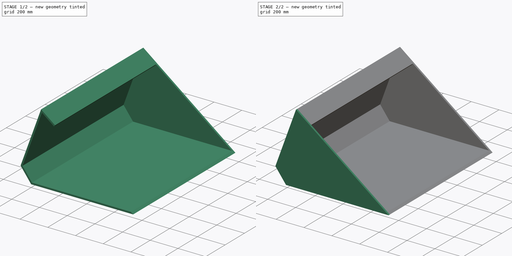
[diagram: build sequence overview — one tinted view per stage of 2, left to right]
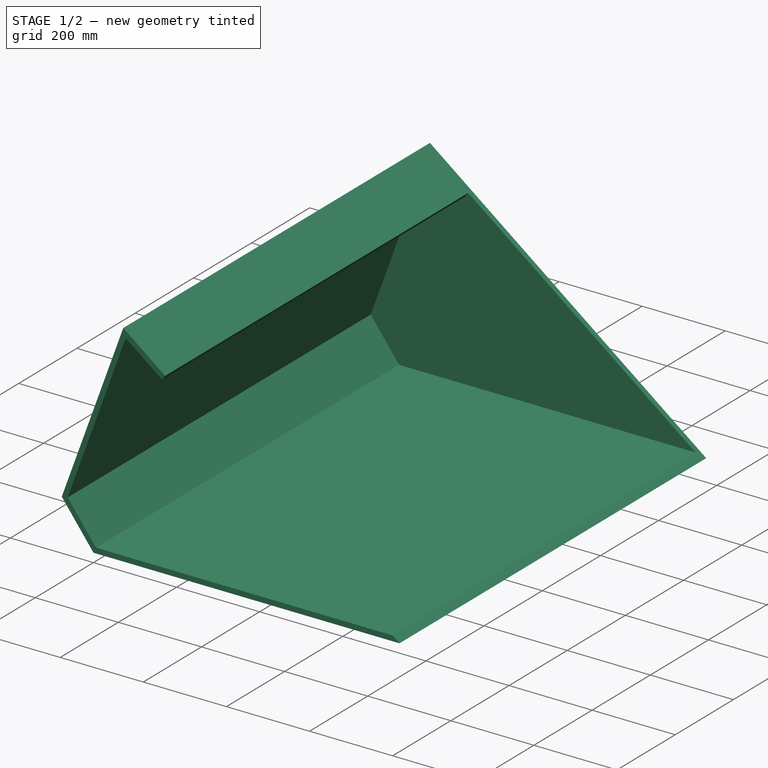
[diagram: stage 1 of 2 — iso view after this stage's code; geometry added in this stage tinted green]
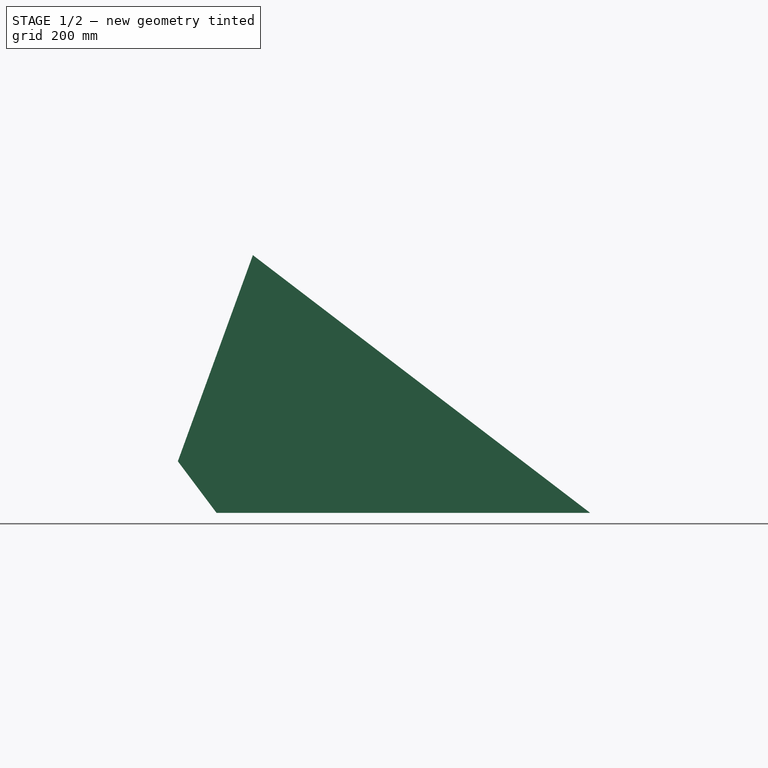
[diagram: stage 1 of 2 — front view after this stage's code; geometry added in this stage tinted green]
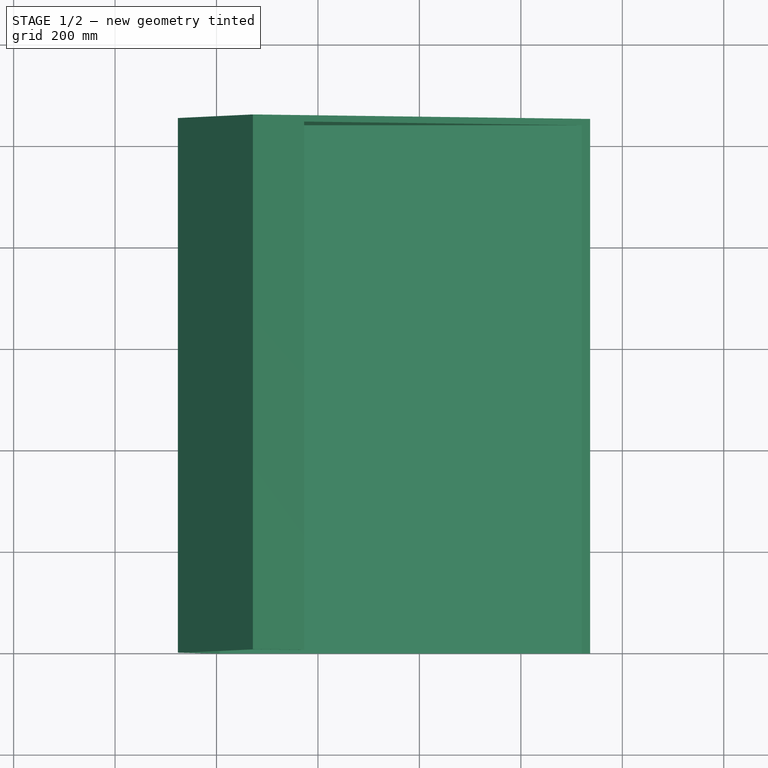
[diagram: stage 1 of 2 — top view after this stage's code; geometry added in this stage tinted green]
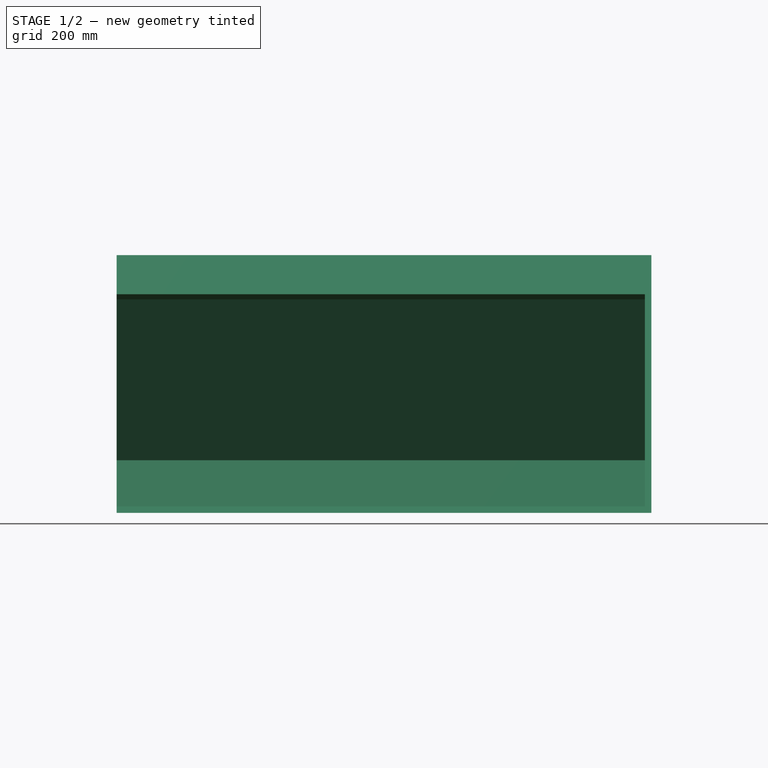
[diagram: stage 1 of 2 — right view after this stage's code; geometry added in this stage tinted green]
FCSTD DOCUMENT  (FreeCAD 0.16R6712 (Git))
Label: MT_ Bucket
License: All rights reserved
LicenseURL: http://en.wikipedia.org/wiki/All_rights_reserved
objects: PartDesign::Pad×3, Sketcher::SketchObject×2, Part::Compound×1
note: 9 computed .brp shape members not serialized (recipe doc carries the construction recipe); baked Part::Feature solids carry a one-line shape summary decoded from their .brp

FEATURE [PartDesign::Pad] Pad001
  Length = 12.7
  Length2 = 100
  Placement = pos=(0,1054.1,0) rot=(1,0,0;1.5708rad)
  Sketch = -> Sketch
  Type = 0
FEATURE [Sketcher::SketchObject] Sketch001
  ExternalGeometry = -> [Pad001]
  Placement = pos=(0,1041.4,0) rot=(1,0,0;1.5708rad)
  Support = -> Pad001 [Face6]
  sketch-geometry (10):
    g0: LineSegment StartX=71.7175 StartY=508 StartZ=0 EndX=-76.2 EndY=101.6 EndZ=0
    g1: LineSegment StartX=-76.2 StartY=101.6 StartZ=0 EndX=0 EndY=0 EndZ=0
    g2: LineSegment StartX=0 StartY=0 StartZ=0 EndX=736.6 EndY=0 EndZ=0
    g3: LineSegment StartX=736.6 StartY=0 StartZ=0 EndX=719.978 EndY=12.7 EndZ=0
    g4: LineSegment StartX=719.978 StartY=12.7 StartZ=0 EndX=6.35 EndY=12.7 EndZ=0
    g5: LineSegment StartX=6.35 StartY=12.7 StartZ=0 EndX=-61.9139 EndY=103.718 EndZ=0
    g6: LineSegment StartX=71.7175 StartY=508 StartZ=0 EndX=172.633 EndY=430.896 EndZ=0
    g7: LineSegment StartX=172.633 StartY=430.896 StartZ=0 EndX=164.923 EndY=420.804 EndZ=0
    g8: LineSegment StartX=164.923 StartY=420.804 StartZ=0 EndX=77.7404 EndY=487.416 EndZ=0
    g9: LineSegment StartX=77.7404 StartY=487.416 StartZ=0 EndX=-61.9139 EndY=103.718 EndZ=0
  constraints (26):
    c: Coincident(g0,g-4)
    c: Coincident(g0,g1)
    c: Coincident(g1,g2)
    c: Coincident(g2,g3)
    c: Coincident(g3,g4)
    c: Horizontal(g4)
    c: Coincident(g4,g5)
    c: Coincident(g0,g-3)
    c: Coincident(g0,g6)
    c: Coincident(g6,g7)
    c: Coincident(g7,g8)
    c: Coincident(g8,g9)
    c: Coincident(g9,g5)
    c: Distance(g6) = 127
    c: PointOnObject(g6,g-6)
    c: Parallel(g8,g-6)
    c: Perpendicular(g-6,g7)
    c: Distance(g8,g-3) = 12.7
    c: Distance(g8,g-6) = 12.7
    c: Parallel(g9,g-3)
    c: Parallel(g5,g-4)
    c: PointOnObject(g3,g-6)
    c: Distance(g3,g-5) = 12.7
    c: Distance(g4,g-4) = 12.7
    c: Coincident(g1,g-5)
    c: Coincident(g2,g-6)
FEATURE [PartDesign::Pad] Pad002
  Length = 1041.4
  Length2 = 100
  Placement = pos=(0,1054.1,0) rot=(1,0,0;1.5708rad)
  Sketch = -> Sketch001
  Type = 0
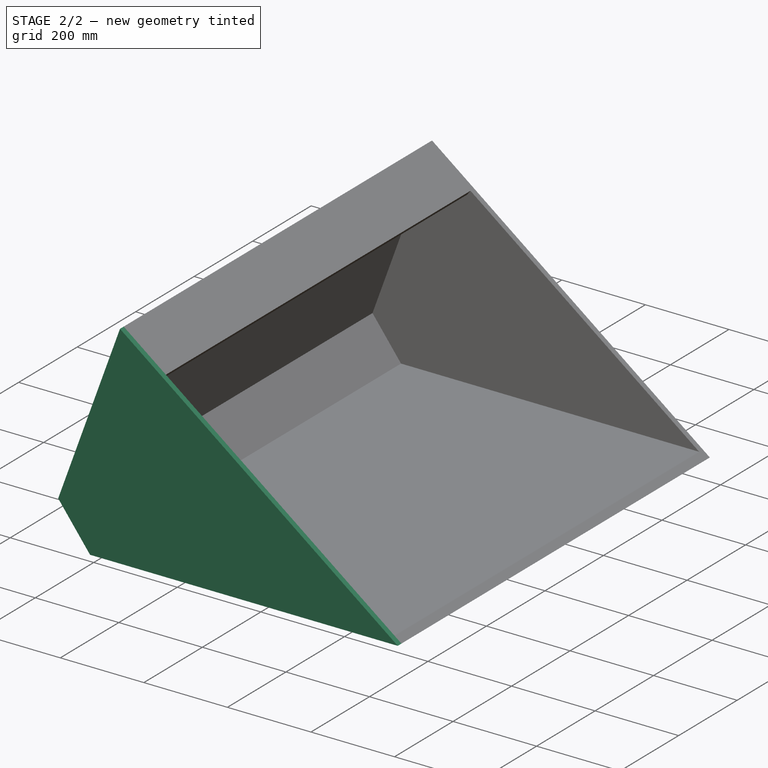
[diagram: stage 2 of 2 — iso view after this stage's code; geometry added in this stage tinted green]
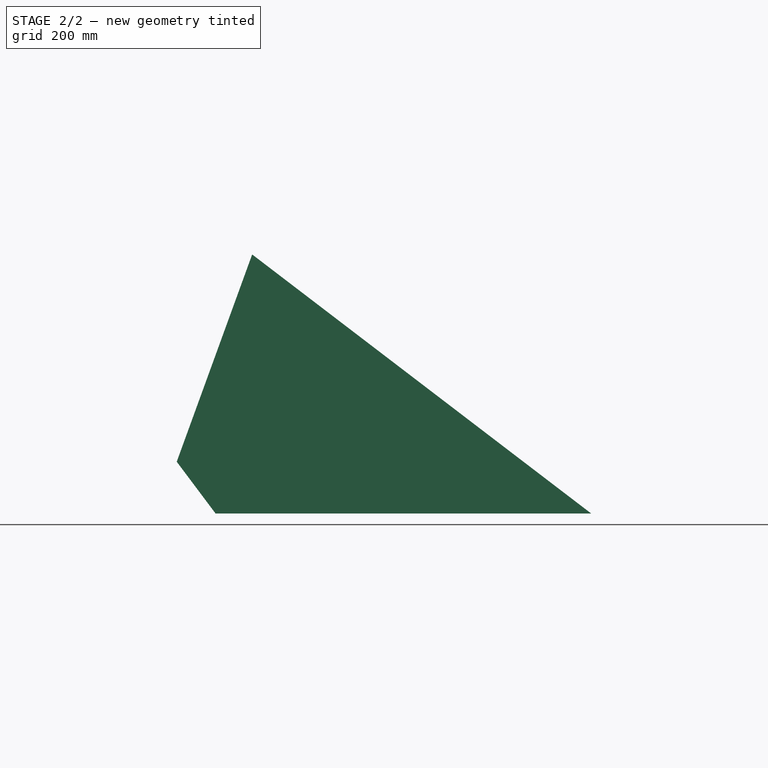
[diagram: stage 2 of 2 — front view after this stage's code; geometry added in this stage tinted green]
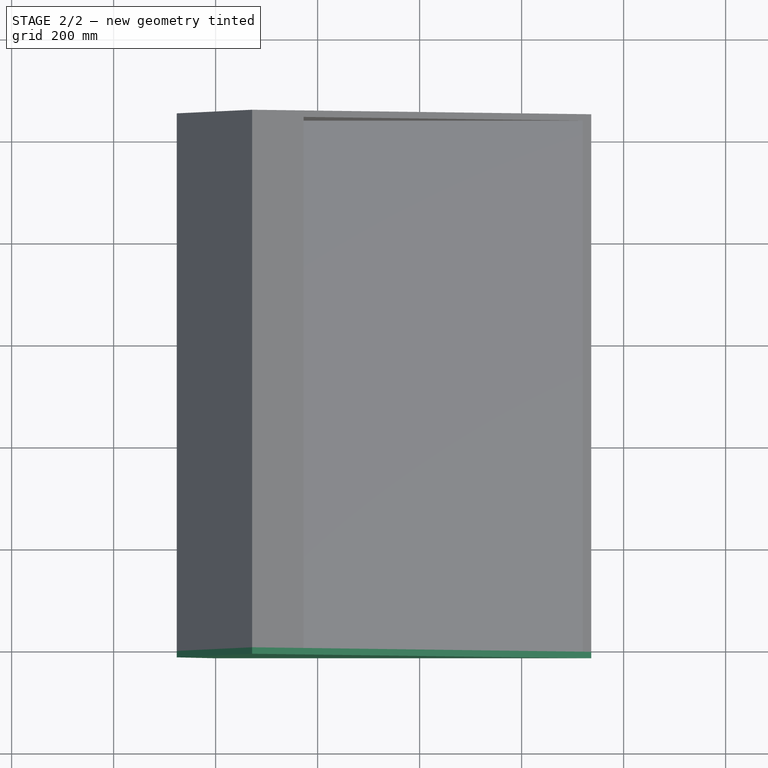
[diagram: stage 2 of 2 — top view after this stage's code; geometry added in this stage tinted green]
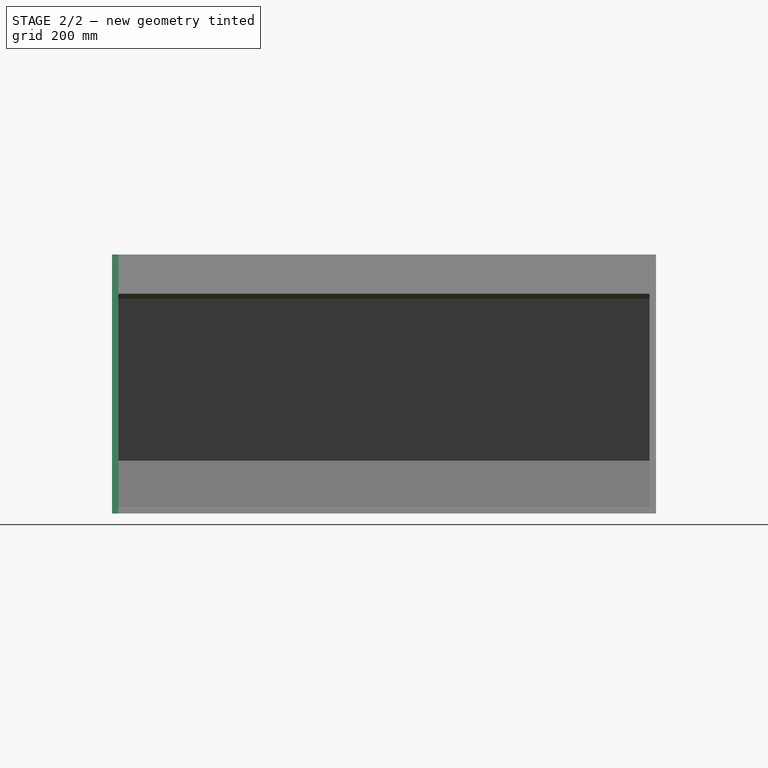
[diagram: stage 2 of 2 — right view after this stage's code; geometry added in this stage tinted green]
FEATURE [Sketcher::SketchObject] Sketch
  Placement = pos=(0,0,0) rot=(1,0,0;1.5708rad)
  sketch-geometry (4):
    g0: LineSegment StartX=736.6 StartY=0 StartZ=0 EndX=71.7175 EndY=508 EndZ=0
    g1: LineSegment StartX=71.7175 StartY=508 StartZ=0 EndX=-76.2 EndY=101.6 EndZ=0
    g2: LineSegment StartX=-76.2 StartY=101.6 StartZ=0 EndX=0 EndY=0 EndZ=0
    g3: LineSegment StartX=0 StartY=0 StartZ=0 EndX=736.6 EndY=0 EndZ=0
  constraints (11):
    c: Coincident(g0,g1)
    c: Coincident(g1,g2)
    c: DistanceY(g-1,g0) = 508
    c: Angle(g-2,g1) = 2.79253
    c: DistanceX(g1) = -76.2
    c: DistanceY(g1) = 101.6
    c: Coincident(g3,g-1)
    c: Coincident(g3,g0)
    c: Horizontal(g3)
    c: Distance(g3) = 736.6
    c: Coincident(g2,g3)
FEATURE [PartDesign::Pad] Pad
  Length = 12.7
  Length2 = 100
  Placement = pos=(0,0,0) rot=(1,0,0;1.5708rad)
  Sketch = -> Sketch
  Type = 0
FEATURE [Part::Compound] Compound
  Links = -> [Pad,Pad002,Pad001]
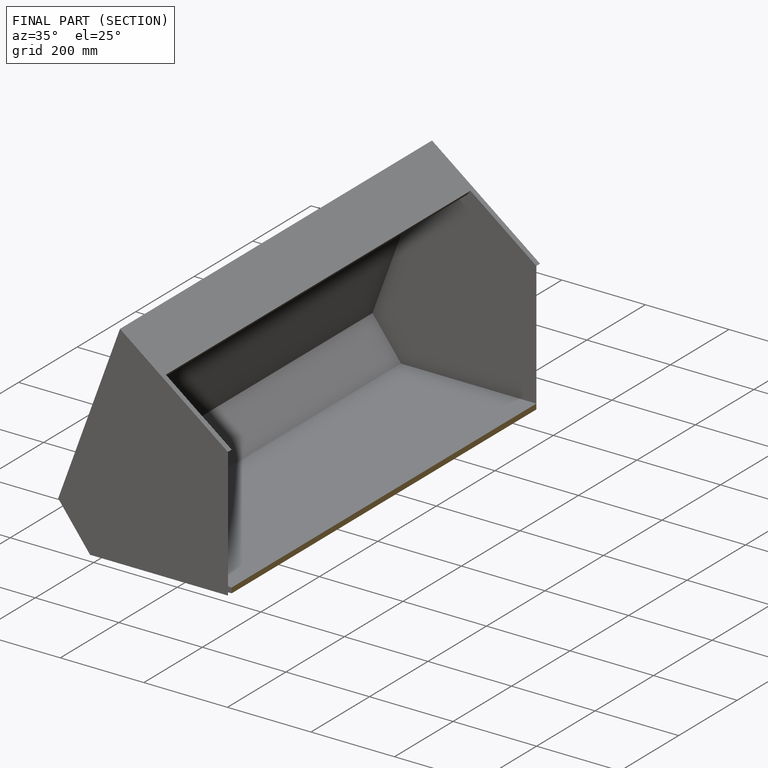
[diagram: finished part — half-section view (interior)]
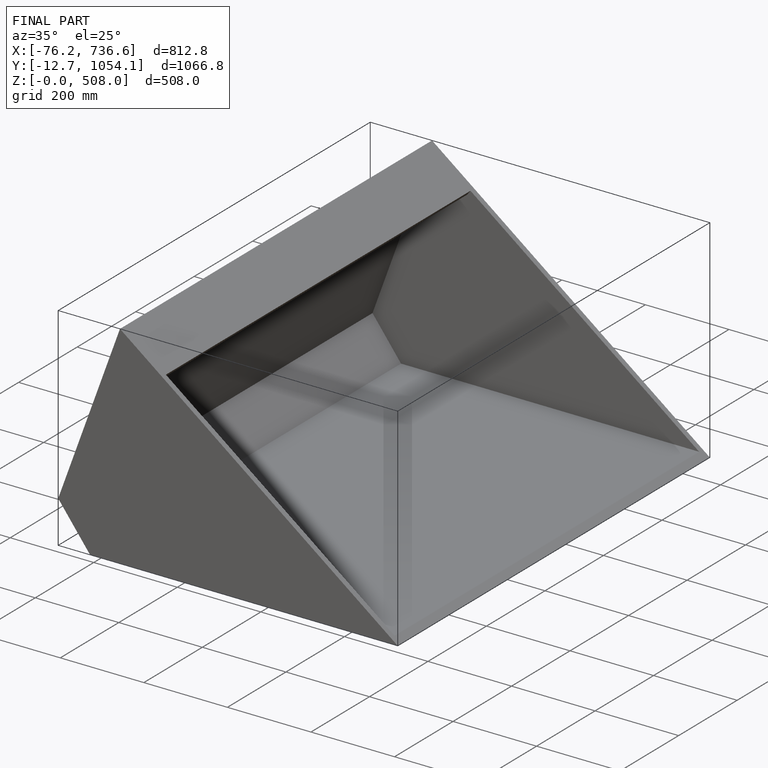
[diagram: finished part — iso view with bounding-box wireframe]
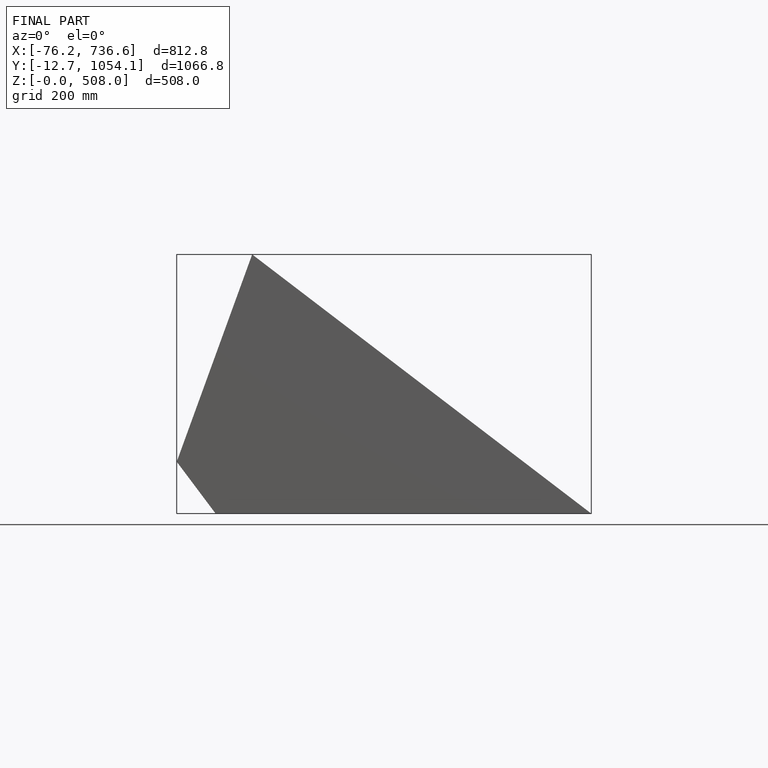
[diagram: finished part — front view with bounding-box wireframe]
